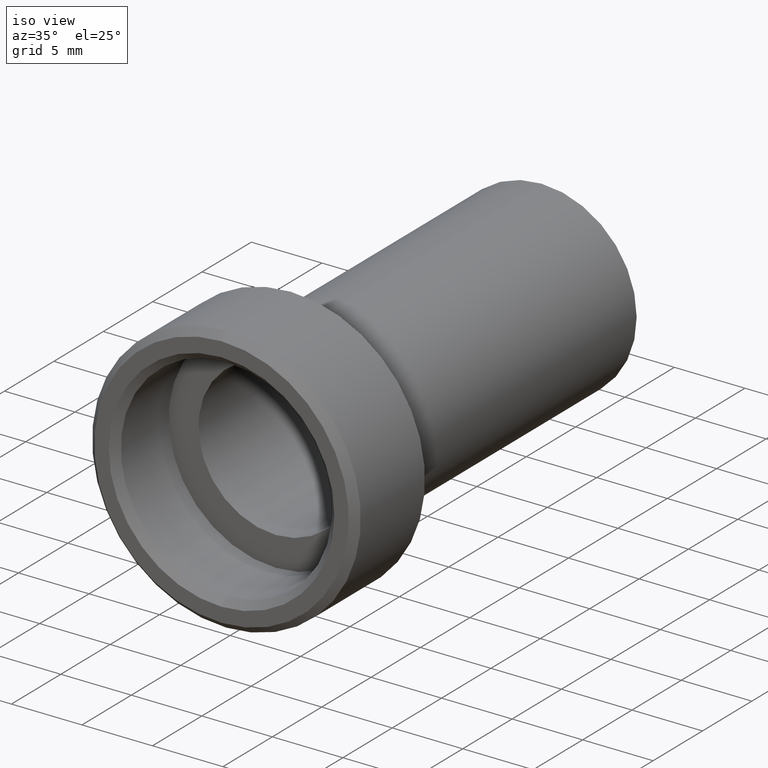
[diagram: clean part render]
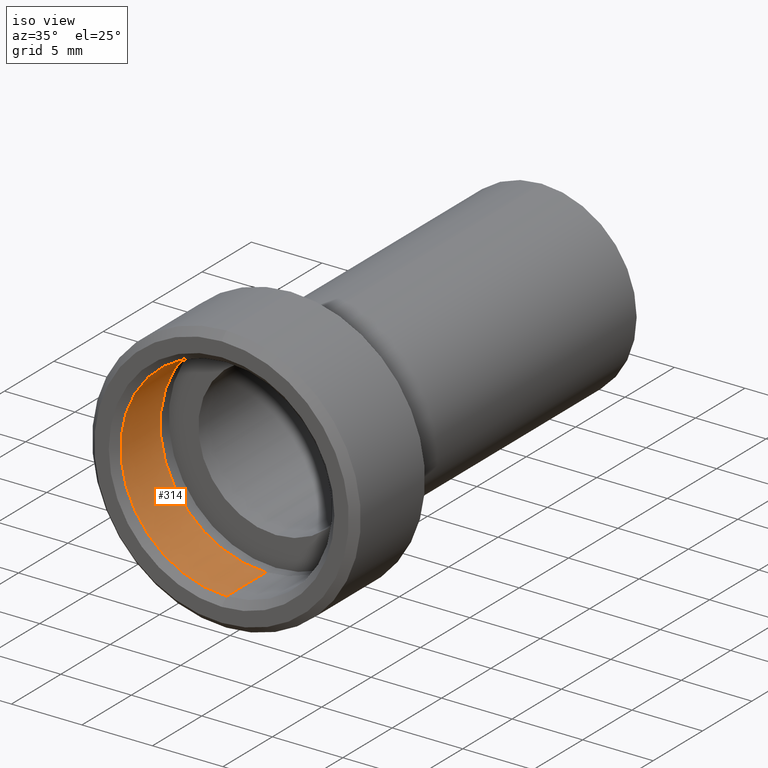
[diagram: same view with one face highlighted and labeled with its STEP entity id]
A machine part, iso view. The second image highlights one B-rep face of the part: STEP entity #314.
In plain terms, the highlighted cylindrical surface (partial cylindrical patch) has radius 7.5 mm, axis along (-0, 1, -0).
Its self-contained STEP definition (entity closure, byte-faithful):
#24 = VERTEX_POINT ( 'NONE', #853 ) ;
#55 = DIRECTION ( 'NONE',  ( -0.0000000000000000000, 1.000000000000000000, -0.0000000000000000000 ) ) ;
#62 = ORIENTED_EDGE ( 'NONE', *, *, #188, .T. ) ;
#102 = VERTEX_POINT ( 'NONE', #501 ) ;
#131 = VECTOR ( 'NONE', #442, 1000.000000000000000 ) ;
#135 = CARTESIAN_POINT ( 'NONE',  ( 0.0000000000000000000, -1.357145825433107900, 0.0000000000000000000 ) ) ;
#164 = EDGE_LOOP ( 'NONE', ( #860, #62, #290, #190 ) ) ;
#174 = EDGE_CURVE ( 'NONE', #24, #680, #732, .T. ) ;
#188 = EDGE_CURVE ( 'NONE', #24, #751, #863, .T. ) ;
#190 = ORIENTED_EDGE ( 'NONE', *, *, #573, .F. ) ;
#209 = DIRECTION ( 'NONE',  ( -0.0000000000000000000, 1.000000000000000000, -0.0000000000000000000 ) ) ;
#216 = CIRCLE ( 'NONE', #340, 7.500000000000007100 ) ;
#228 = CARTESIAN_POINT ( 'NONE',  ( 9.184850993605157800E-016, -1.357145825433107900, -7.500000000000007100 ) ) ;
#290 = ORIENTED_EDGE ( 'NONE', *, *, #528, .T. ) ;
#314 = ADVANCED_FACE ( 'NONE', ( #838 ), #752, .F. ) ;
#340 = AXIS2_PLACEMENT_3D ( 'NONE', #135, #408, #540 ) ;
#385 = AXIS2_PLACEMENT_3D ( 'NONE', #457, #55, #879 ) ;
#408 = DIRECTION ( 'NONE',  ( -0.0000000000000000000, 1.000000000000000000, -0.0000000000000000000 ) ) ;
#438 = DIRECTION ( 'NONE',  ( -0.0000000000000000000, 1.000000000000000000, -0.0000000000000000000 ) ) ;
#442 = DIRECTION ( 'NONE',  ( -0.0000000000000000000, 1.000000000000000000, -0.0000000000000000000 ) ) ;
#450 = CARTESIAN_POINT ( 'NONE',  ( 9.184850993605157800E-016, 44.59859774529311900, -7.500000000000007100 ) ) ;
#457 = CARTESIAN_POINT ( 'NONE',  ( 0.0000000000000000000, 44.59859774529311900, 0.0000000000000000000 ) ) ;
#495 = LINE ( 'NONE', #617, #694 ) ;
#501 = CARTESIAN_POINT ( 'NONE',  ( 0.0000000000000000000, -1.357145825433107900, 7.500000000000007100 ) ) ;
#515 = CARTESIAN_POINT ( 'NONE',  ( 0.0000000000000000000, -5.357145825433104100, 0.0000000000000000000 ) ) ;
#528 = EDGE_CURVE ( 'NONE', #751, #102, #216, .T. ) ;
#540 = DIRECTION ( 'NONE',  ( 0.0000000000000000000, 0.0000000000000000000, 1.000000000000000000 ) ) ;
#554 = CARTESIAN_POINT ( 'NONE',  ( 0.0000000000000000000, -5.357145825433104100, 7.500000000000007100 ) ) ;
#573 = EDGE_CURVE ( 'NONE', #680, #102, #495, .T. ) ;
#617 = CARTESIAN_POINT ( 'NONE',  ( 0.0000000000000000000, 44.59859774529311900, 7.500000000000007100 ) ) ;
#680 = VERTEX_POINT ( 'NONE', #554 ) ;
#694 = VECTOR ( 'NONE', #209, 1000.000000000000000 ) ;
#732 = CIRCLE ( 'NONE', #832, 7.500000000000007100 ) ;
#751 = VERTEX_POINT ( 'NONE', #228 ) ;
#752 = CYLINDRICAL_SURFACE ( 'NONE', #385, 7.500000000000007100 ) ;
#802 = DIRECTION ( 'NONE',  ( 0.0000000000000000000, 0.0000000000000000000, 1.000000000000000000 ) ) ;
#832 = AXIS2_PLACEMENT_3D ( 'NONE', #515, #438, #802 ) ;
#838 = FACE_OUTER_BOUND ( 'NONE', #164, .T. ) ;
#853 = CARTESIAN_POINT ( 'NONE',  ( 9.184850993605159800E-016, -5.357145825433104100, -7.500000000000008000 ) ) ;
#860 = ORIENTED_EDGE ( 'NONE', *, *, #174, .F. ) ;
#863 = LINE ( 'NONE', #450, #131 ) ;
#879 = DIRECTION ( 'NONE',  ( 0.0000000000000000000, 0.0000000000000000000, 1.000000000000000000 ) ) ;